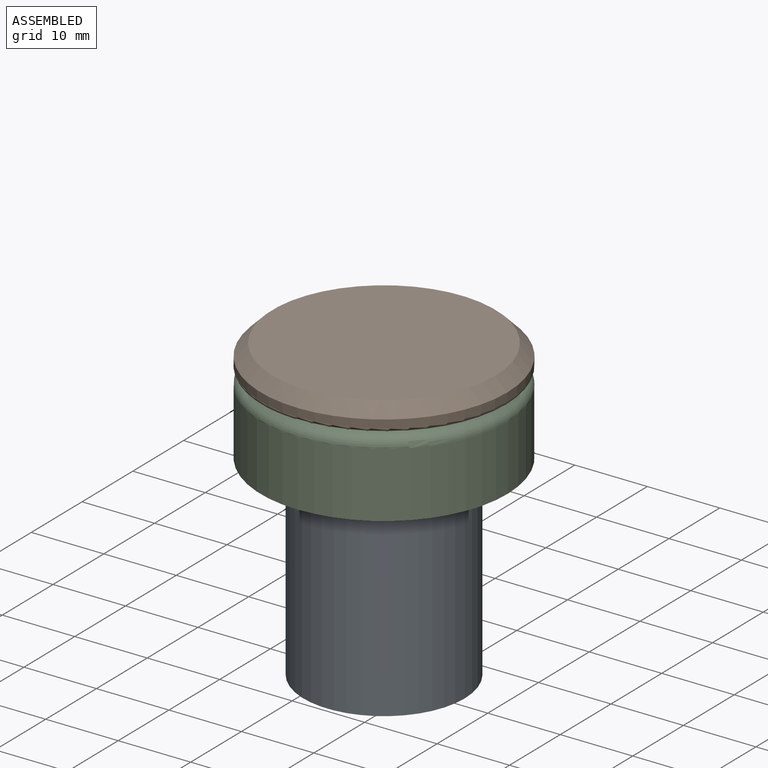
[diagram: assembled view]
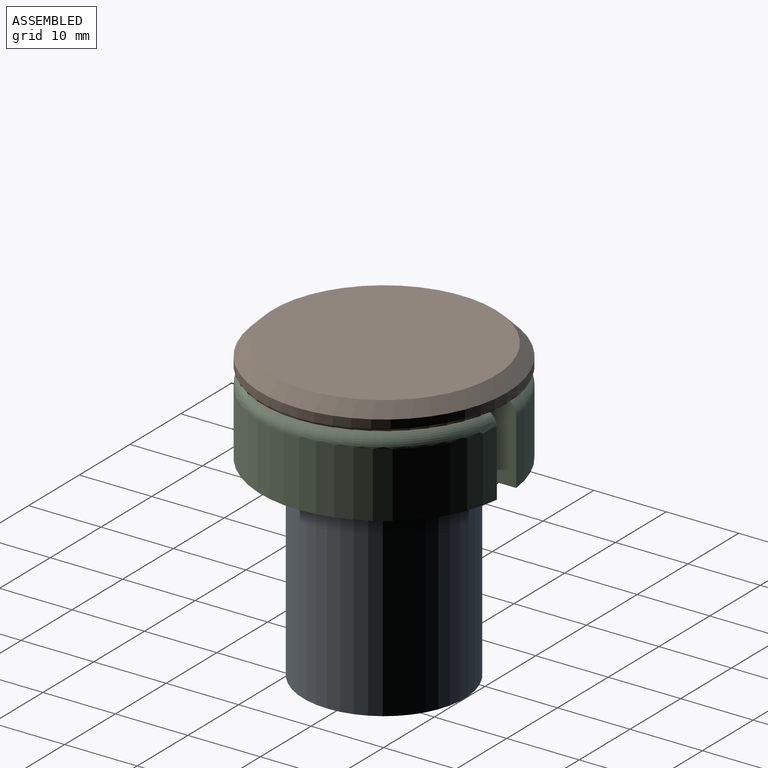
[diagram: assembled view, second angle]
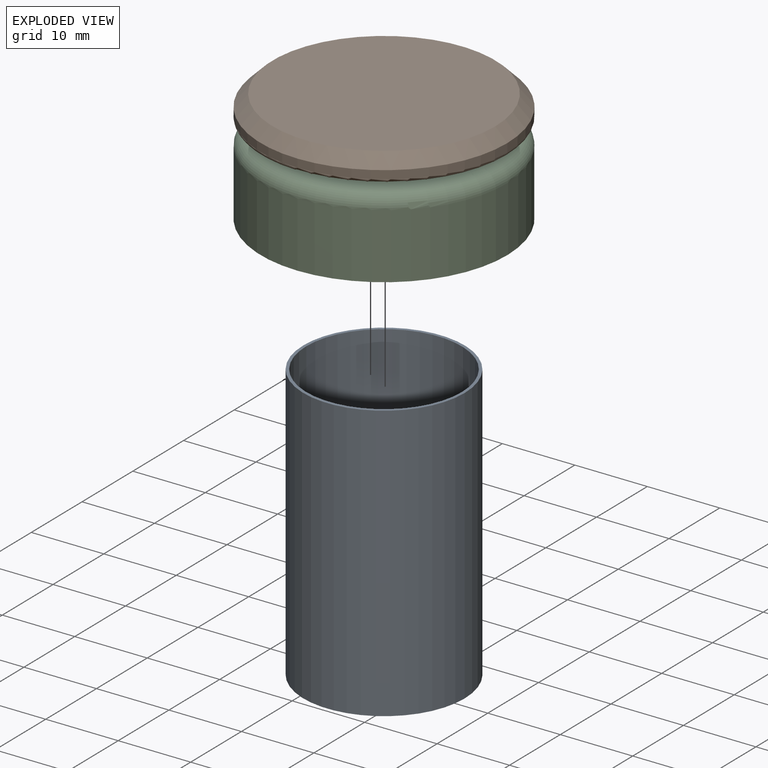
[diagram: exploded view]
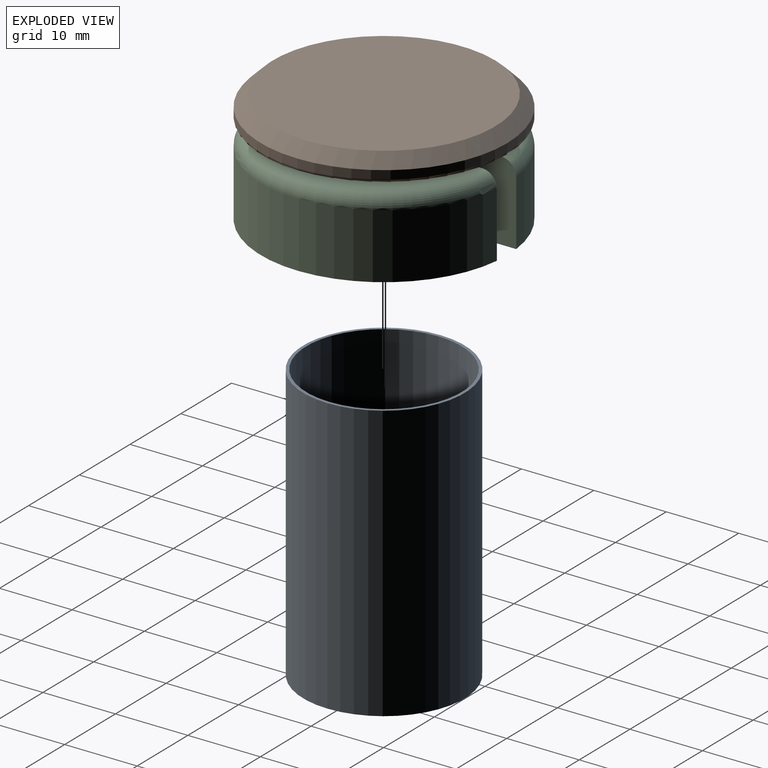
[diagram: exploded view, second angle]
ASSEMBLY  parts=3 mates=3
PART A: 4 faces, bbox 22.3x22.3x38.1 mm
  f0: cylinder r=10.72mm len=38.1mm, axis (0,0,-1), area 2566mm2, adj f2,f3
  f1: cylinder r=11.13mm len=38.1mm, axis (0,0,-1), area 2663.3mm2, adj f2,f3
  f2: plane 22.25x22.25mm, normal (0,0,1), area 27.9mm2, adj f0,f1
  f3: plane 22.25x22.25mm, normal (0,0,-1), area 27.9mm2, adj f0,f1
PART B: 10 faces, bbox 36.8x36.8x14.3 mm
  f0: cylinder r=13.33mm len=26.67mm, axis (0,0,-1), area 657.1mm2, adj f1,f3,f4,f7
  f1: plane 11x2.48mm, normal (0,1,0), area 27.3mm2, adj f0,f2,f4,f7
  f2: cylinder r=11.49mm len=22.99mm, axis (0,0,-1), area 600.3mm2, adj f1,f3,f4,f7
  f3: plane 11x2.48mm, normal (0,1,0), area 27.3mm2, adj f0,f2,f4,f7
  f4: plane 26.67x21.61mm, normal (0,0,1), area 105.2mm2, adj f0,f1,f2,f3
  f5: cylinder r=17.02mm len=34.04mm, axis (0,0,1), area 122.2mm2, adj f8,f9
  f6: plane 30.73x30.73mm, normal (0,0,-1), area 741.9mm2, adj f9
  f7: plane 33.02x33.02mm, normal (0,0,1), area 751.1mm2, adj f0,f1,f2,f3,f8
  f8: torus R=16.51mm, axis (0,0,-1), area 84.4mm2, adj f5,f7
  f9: cone r=15.37mm half-angle=45deg, axis (0,0,1), area 237.6mm2, adj f5,f6
PART C: 11 faces, bbox 36.8x36.7x11 mm
  f0: cylinder r=13.53mm len=27.05mm, axis (0,0,-1), area 677.6mm2, adj f2,f3,f6,f9
  f1: cylinder r=17.02mm len=34.04mm, axis (0,0,-1), area 924.5mm2, adj f3,f4,f5,f10
  f2: plane 29.97x29.85mm, normal (0,0,1), area 164.6mm2, adj f0,f4,f5,f6,f7,f8,f9,f10
  f3: plane 34.04x33.93mm, normal (0,0,-1), area 361.1mm2, adj f0,f1,f4,f5,f6,f7,f8,f9
  f4: plane 11x6.22mm, normal (-1,0,0), area 67.5mm2, adj f1,f2,f3,f8,f10
  f5: plane 11x6.22mm, normal (1,0,0), area 67.5mm2, adj f1,f2,f3,f7,f10
  f6: plane 11x2.87mm, normal (0,-1,0), area 31.6mm2, adj f0,f2,f3,f7
  f7: plane 11x5.51mm, normal (0.33,-0.95,0), area 64.1mm2, adj f2,f3,f5,f6
  f8: plane 11x5.51mm, normal (-0.33,-0.95,0), area 64.1mm2, adj f2,f3,f4,f9
  f9: plane 11x2.87mm, normal (0,-1,0), area 31.6mm2, adj f0,f2,f3,f8
  f10: torus R=14.99mm, axis (0,0,1), area 314.3mm2, adj f1,f2,f4,f5
PLACE A t=(15.66,0.03,0)mm
PLACE B rot(axis=(0,1,0),180deg) t=(15.66,0.03,38.1)mm
PLACE C t=(15.66,0.03,27.07)mm
MATE slider B.f2 <-> A.f1  axis (0,0,1) through (15.66,0.03,32.6)mm
MATE slider C.f0 <-> A.f1  axis (0,0,-1) through (15.66,0.03,32.57)mm
MATE planar B.f7 <-> A.f1  axis (0,0,-1) through (15.66,0.59,38.1)mm
